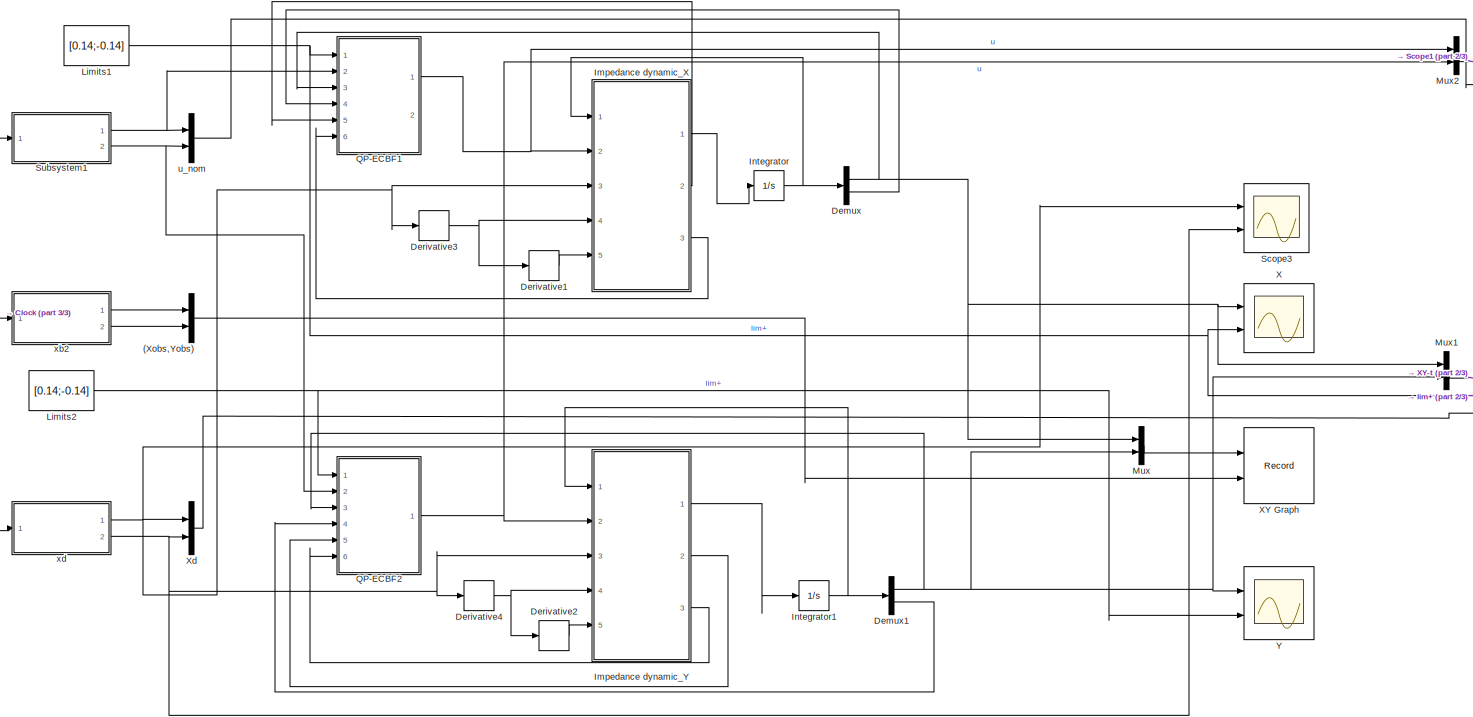
[diagram: root canvas - part 1/3, most of the canvas]
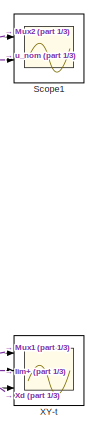
[diagram: root canvas - part 2/3, middle right region]
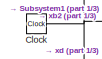
[diagram: root canvas - part 3/3, middle left region]
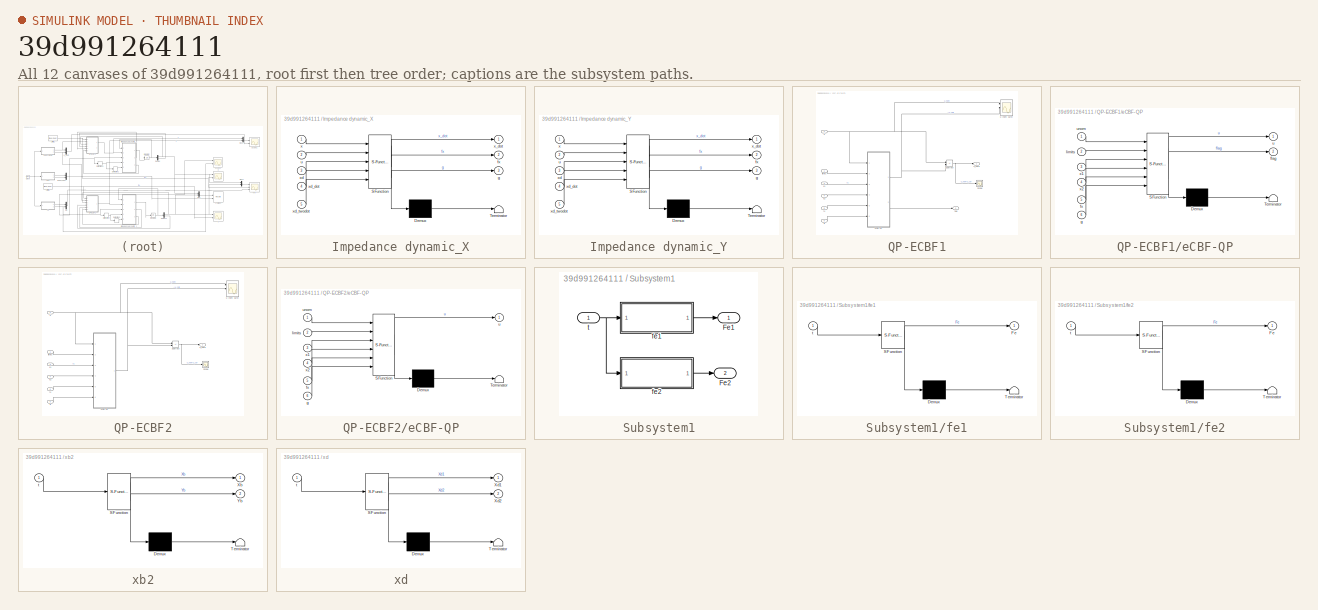
[diagram: thumbnail index - all 12 canvases of the model, root first then tree order]
MODEL slx_39d991264111
KIND model
CONFIG AbsTol = auto
CONFIG EnableMultiTasking = off
CONFIG FixedStep = 0.01
CONFIG MaxStep = auto
CONFIG MinStep = auto
CONFIG RelTol = 1e-3
CONFIG SampleTimeConstraint = Unconstrained
CONFIG SolverName = ode4
CONFIG StartTime = 0.0
CONFIG StopTime = 30
BLOCK [Mux] (Xobs,Yobs)
  DisplayOption = bar
  Inputs = 2
  NameLocation = left
  Ports = [2, 1]
BLOCK [Clock] Clock
BLOCK [Demux] Demux
  Outputs = 2
  Ports = [1, 2]
BLOCK [Demux] Demux1
  Outputs = 2
  Ports = [1, 2]
BLOCK [Derivative] Derivative1
BLOCK [Derivative] Derivative2
BLOCK [Derivative] Derivative3
BLOCK [Derivative] Derivative4
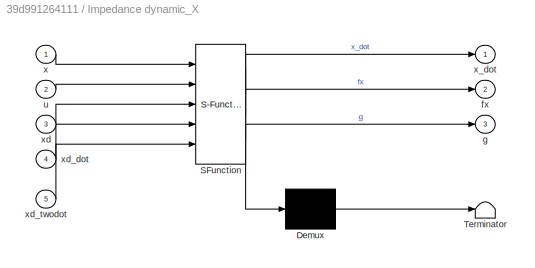
BLOCK [SubSystem] Impedance dynamic_X
  ErrorFcn = Stateflow.Translate.translate
  PermitHierarchicalResolution = ExplicitOnly
  Ports = [5, 3]
  RequestExecContextInheritance = off
  SFBlockType = MATLAB Function
  TreatAsAtomicUnit = on
BLOCK [Demux] Impedance dynamic_X/ Demux 
  Outputs = 1
  Ports = [1, 1]
BLOCK [S-Function] Impedance dynamic_X/ SFunction 
  EnableBusSupport = on
  FunctionName = sf_sfun
  PortCounts = [5 4]
  Ports = [5, 4]
  SFcnIsStateOwnerBlock = off
  SFunctionDeploymentMode = off
  Tag = Stateflow S-Function 7
BLOCK [Terminator] Impedance dynamic_X/ Terminator 
BLOCK [Outport] Impedance dynamic_X/fx
  Port = 2
BLOCK [Outport] Impedance dynamic_X/g
  Port = 3
BLOCK [Inport] Impedance dynamic_X/u
  Port = 2
BLOCK [Inport] Impedance dynamic_X/x
BLOCK [Outport] Impedance dynamic_X/x_dot
BLOCK [Inport] Impedance dynamic_X/xd
  Port = 3
BLOCK [Inport] Impedance dynamic_X/xd_dot
  Port = 4
BLOCK [Inport] Impedance dynamic_X/xd_twodot
  Port = 5
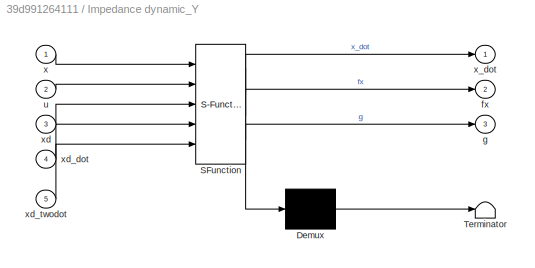
BLOCK [SubSystem] Impedance dynamic_Y
  ErrorFcn = Stateflow.Translate.translate
  PermitHierarchicalResolution = ExplicitOnly
  Ports = [5, 3]
  RequestExecContextInheritance = off
  SFBlockType = MATLAB Function
  TreatAsAtomicUnit = on
BLOCK [Demux] Impedance dynamic_Y/ Demux 
  Outputs = 1
  Ports = [1, 1]
BLOCK [S-Function] Impedance dynamic_Y/ SFunction 
  EnableBusSupport = on
  FunctionName = sf_sfun
  PortCounts = [5 4]
  Ports = [5, 4]
  SFcnIsStateOwnerBlock = off
  SFunctionDeploymentMode = off
  Tag = Stateflow S-Function 1
BLOCK [Terminator] Impedance dynamic_Y/ Terminator 
BLOCK [Outport] Impedance dynamic_Y/fx
  Port = 2
BLOCK [Outport] Impedance dynamic_Y/g
  Port = 3
BLOCK [Inport] Impedance dynamic_Y/u
  Port = 2
BLOCK [Inport] Impedance dynamic_Y/x
BLOCK [Outport] Impedance dynamic_Y/x_dot
BLOCK [Inport] Impedance dynamic_Y/xd
  Port = 3
BLOCK [Inport] Impedance dynamic_Y/xd_dot
  Port = 4
BLOCK [Inport] Impedance dynamic_Y/xd_twodot
  Port = 5
BLOCK [Integrator] Integrator
  InitialCondition = [0.109;0]
  Ports = [1, 1]
BLOCK [Integrator] Integrator1
  InitialCondition = [0;0]
  Ports = [1, 1]
BLOCK [Constant] Limits1
  NameLocation = top
  SampleTime = -1
  Value = [0.14;-0.14]
  VectorParams1D = off
BLOCK [Constant] Limits2
  NameLocation = top
  SampleTime = -1
  Value = [0.14;-0.14]
  VectorParams1D = off
BLOCK [Mux] Mux
  DisplayOption = bar
  Inputs = 2
  Ports = [2, 1]
BLOCK [Mux] Mux1
  DisplayOption = bar
  Inputs = 2
  Ports = [2, 1]
BLOCK [Mux] Mux2
  DisplayOption = bar
  Inputs = 2
  Ports = [2, 1]
BLOCK [SubSystem] QP-ECBF1
  Ports = [6, 2]
  RequestExecContextInheritance = off
BLOCK [Scope] QP-ECBF1/Scope
  Floating = off
  NumInputPorts = 1
  Ports = [1]
  ScopeSpecificationString = Simulink.scopes.TimeScopeBlockCfg('CurrentConfiguration', extmgr.ConfigurationSet(extmgr.Configuration('Core','General UI',true),extmgr.Configuration('Core','Source UI',true),extmgr.Configuration('Sources','WiredSimulink',true,'DataLoggingVariableName','ScopeData1'),extmgr.Configuration('Visuals','Time Domain',true,'SerializedDisplays',{struct('MinYLimReal','-74.07676','MaxYLimReal','62.38981','YL...<+1453ch>
BLOCK [Sum] QP-ECBF1/Subtract
  IconShape = rectangular
  Inputs = +-
  Ports = [2, 1]
BLOCK [SubSystem] QP-ECBF1/eCBF-QP
  ErrorFcn = Stateflow.Translate.translate
  PermitHierarchicalResolution = ExplicitOnly
  Ports = [6, 2]
  RequestExecContextInheritance = off
  SFBlockType = MATLAB Function
  TreatAsAtomicUnit = on
BLOCK [Demux] QP-ECBF1/eCBF-QP/ Demux 
  Outputs = 1
  Ports = [1, 1]
BLOCK [S-Function] QP-ECBF1/eCBF-QP/ SFunction 
  EnableBusSupport = on
  FunctionName = sf_sfun
  PortCounts = [6 3]
  Ports = [6, 3]
  SFcnIsStateOwnerBlock = off
  SFunctionDeploymentMode = off
  Tag = Stateflow S-Function 6
BLOCK [Terminator] QP-ECBF1/eCBF-QP/ Terminator 
BLOCK [Outport] QP-ECBF1/eCBF-QP/flag
  Port = 2
BLOCK [Inport] QP-ECBF1/eCBF-QP/fx
  Port = 5
BLOCK [Inport] QP-ECBF1/eCBF-QP/g
  Port = 6
BLOCK [Inport] QP-ECBF1/eCBF-QP/limits
  Port = 2
BLOCK [Outport] QP-ECBF1/eCBF-QP/u
BLOCK [Inport] QP-ECBF1/eCBF-QP/unom
BLOCK [Inport] QP-ECBF1/eCBF-QP/x1
  Port = 3
BLOCK [Inport] QP-ECBF1/eCBF-QP/x2
  Port = 4
BLOCK [Outport] QP-ECBF1/flag
  Port = 2
BLOCK [Inport] QP-ECBF1/fx
  Port = 5
BLOCK [Inport] QP-ECBF1/g
  Port = 6
BLOCK [Inport] QP-ECBF1/limits
  NameLocation = left
BLOCK [Inport] QP-ECBF1/u
  NameLocation = left
  Port = 2
BLOCK [Scope] QP-ECBF1/u (nom safe)
  Floating = off
  NumInputPorts = 3
  Ports = [3]
  ScopeSpecificationString = Simulink.scopes.TimeScopeBlockCfg('CurrentConfiguration', extmgr.ConfigurationSet(extmgr.Configuration('Core','General UI',true),extmgr.Configuration('Core','Source UI',true),extmgr.Configuration('Sources','WiredSimulink',true,'DataLoggingVariableName','ScopeData2'),extmgr.Configuration('Visuals','Time Domain',true,'SerializedDisplays',{struct('MinYLimReal','-49.89459','MaxYLimReal','129.1693','YL...<+1580ch>
BLOCK [Outport] QP-ECBF1/u_safe
  NameLocation = right
BLOCK [Inport] QP-ECBF1/x1
  Port = 3
BLOCK [Inport] QP-ECBF1/x2
  Port = 4
BLOCK [SubSystem] QP-ECBF2
  Ports = [6, 1]
  RequestExecContextInheritance = off
BLOCK [Scope] QP-ECBF2/Scope
  Floating = off
  NumInputPorts = 1
  Ports = [1]
  ScopeSpecificationString = Simulink.scopes.TimeScopeBlockCfg('CurrentConfiguration', extmgr.ConfigurationSet(extmgr.Configuration('Core','General UI',true),extmgr.Configuration('Core','Source UI',true),extmgr.Configuration('Sources','WiredSimulink',true,'DataLoggingVariableName','ScopeData1'),extmgr.Configuration('Visuals','Time Domain',true,'SerializedDisplays',{struct('MinYLimReal','-74.07676','MaxYLimReal','62.38981','YL...<+1453ch>
BLOCK [Sum] QP-ECBF2/Subtract
  IconShape = rectangular
  Inputs = +-
  Ports = [2, 1]
BLOCK [SubSystem] QP-ECBF2/eCBF-QP
  ErrorFcn = Stateflow.Translate.translate
  PermitHierarchicalResolution = ExplicitOnly
  Ports = [6, 1]
  RequestExecContextInheritance = off
  SFBlockType = MATLAB Function
  TreatAsAtomicUnit = on
BLOCK [Demux] QP-ECBF2/eCBF-QP/ Demux 
  Outputs = 1
  Ports = [1, 1]
BLOCK [S-Function] QP-ECBF2/eCBF-QP/ SFunction 
  EnableBusSupport = on
  FunctionName = sf_sfun
  PortCounts = [6 2]
  Ports = [6, 2]
  SFcnIsStateOwnerBlock = off
  SFunctionDeploymentMode = off
  Tag = Stateflow S-Function 3
BLOCK [Terminator] QP-ECBF2/eCBF-QP/ Terminator 
BLOCK [Inport] QP-ECBF2/eCBF-QP/fx
  Port = 5
BLOCK [Inport] QP-ECBF2/eCBF-QP/g
  Port = 6
BLOCK [Inport] QP-ECBF2/eCBF-QP/limits
  Port = 2
BLOCK [Outport] QP-ECBF2/eCBF-QP/u
BLOCK [Inport] QP-ECBF2/eCBF-QP/unom
BLOCK [Inport] QP-ECBF2/eCBF-QP/x1
  Port = 3
BLOCK [Inport] QP-ECBF2/eCBF-QP/x2
  Port = 4
BLOCK [Inport] QP-ECBF2/fx
  Port = 5
BLOCK [Inport] QP-ECBF2/g
  Port = 6
BLOCK [Inport] QP-ECBF2/limits
  NameLocation = left
BLOCK [Inport] QP-ECBF2/u
  NameLocation = left
  Port = 2
BLOCK [Scope] QP-ECBF2/u (nom safe)
  Floating = off
  NumInputPorts = 3
  Ports = [3]
  ScopeSpecificationString = Simulink.scopes.TimeScopeBlockCfg('CurrentConfiguration', extmgr.ConfigurationSet(extmgr.Configuration('Core','General UI',true),extmgr.Configuration('Core','Source UI',true),extmgr.Configuration('Sources','WiredSimulink',true,'DataLoggingVariableName','ScopeData2'),extmgr.Configuration('Visuals','Time Domain',true,'SerializedDisplays',{struct('MinYLimReal','-49.89459','MaxYLimReal','129.1693','YL...<+1580ch>
BLOCK [Outport] QP-ECBF2/u_safe
  NameLocation = right
BLOCK [Inport] QP-ECBF2/x1
  Port = 3
BLOCK [Inport] QP-ECBF2/x2
  Port = 4
BLOCK [Scope] Scope1
  Floating = off
  NumInputPorts = 2
  Ports = [2]
  ScopeSpecificationString = Simulink.scopes.TimeScopeBlockCfg('CurrentConfiguration', extmgr.ConfigurationSet(extmgr.Configuration('Core','General UI',true),extmgr.Configuration('Core','Source UI',true),extmgr.Configuration('Sources','WiredSimulink',true,'DataLoggingVariableName','fe','DataLogging',true,'DataLoggingSaveFormat','StructureWithTime'),extmgr.Configuration('Visuals','Time Domain',true,'SerializedDisplays',{struct...<+1485ch>
BLOCK [Scope] Scope3
  Floating = off
  NumInputPorts = 2
  Ports = [2]
  ScopeSpecificationString = Simulink.scopes.TimeScopeBlockCfg('CurrentConfiguration', extmgr.ConfigurationSet(extmgr.Configuration('Core','General UI',true),extmgr.Configuration('Core','Source UI',true),extmgr.Configuration('Sources','WiredSimulink',true,'DataLoggingVariableName','ScopeData2'),extmgr.Configuration('Visuals','Time Domain',true,'SerializedDisplays',{struct('MinYLimReal','-0.175','MaxYLimReal','0.175','YLabelRe...<+1396ch>
BLOCK [SubSystem] Subsystem1
  Ports = [1, 2]
  RequestExecContextInheritance = off
BLOCK [Outport] Subsystem1/Fe1
BLOCK [Outport] Subsystem1/Fe2
  Port = 2
BLOCK [SubSystem] Subsystem1/fe1
  ErrorFcn = Stateflow.Translate.translate
  PermitHierarchicalResolution = ExplicitOnly
  Ports = [1, 1]
  RequestExecContextInheritance = off
  SFBlockType = MATLAB Function
  TreatAsAtomicUnit = on
BLOCK [Demux] Subsystem1/fe1/ Demux 
  Outputs = 1
  Ports = [1, 1]
BLOCK [S-Function] Subsystem1/fe1/ SFunction 
  EnableBusSupport = on
  FunctionName = sf_sfun
  PortCounts = [1 2]
  Ports = [1, 2]
  SFcnIsStateOwnerBlock = off
  SFunctionDeploymentMode = off
  Tag = Stateflow S-Function 2
BLOCK [Terminator] Subsystem1/fe1/ Terminator 
BLOCK [Outport] Subsystem1/fe1/Fe
BLOCK [Inport] Subsystem1/fe1/t
BLOCK [SubSystem] Subsystem1/fe2
  ErrorFcn = Stateflow.Translate.translate
  PermitHierarchicalResolution = ExplicitOnly
  Ports = [1, 1]
  RequestExecContextInheritance = off
  SFBlockType = MATLAB Function
  TreatAsAtomicUnit = on
BLOCK [Demux] Subsystem1/fe2/ Demux 
  Outputs = 1
  Ports = [1, 1]
BLOCK [S-Function] Subsystem1/fe2/ SFunction 
  EnableBusSupport = on
  FunctionName = sf_sfun
  PortCounts = [1 2]
  Ports = [1, 2]
  SFcnIsStateOwnerBlock = off
  SFunctionDeploymentMode = off
  Tag = Stateflow S-Function 4
BLOCK [Terminator] Subsystem1/fe2/ Terminator 
BLOCK [Outport] Subsystem1/fe2/Fe
BLOCK [Inport] Subsystem1/fe2/t
BLOCK [Inport] Subsystem1/t
BLOCK [Scope] X
  Floating = off
  NumInputPorts = 2
  Ports = [2]
  ScopeSpecificationString = Simulink.scopes.TimeScopeBlockCfg('CurrentConfiguration', extmgr.ConfigurationSet(extmgr.Configuration('Core','General UI',true),extmgr.Configuration('Core','Source UI',true),extmgr.Configuration('Sources','WiredSimulink',true,'DataLoggingVariableName','ScopeData1'),extmgr.Configuration('Visuals','Time Domain',true,'SerializedDisplays',{struct('MinYLimReal','-0.175','MaxYLimReal','0.175','YLabelRe...<+1407ch>
BLOCK [Record] XY Graph
  CompatibilityTag = XY
  FileSettingsInternal = {"entries":[{"content":{"excelSettings":{"content":{},"type":"Streamout.ExcelSettings"}},"type":"Streamout.FileSettingStorage","uuid":"dbb08b8c-82d0-465d-aff3-0ed4ecab6f36"}],"packageUris":["http://schema.mathworks.com/mf0/streamout_blocks/R2020a"],"version":"1.0"}
  Layout = [1 1]
  Ports = [2]
  RecordToWorkspace = on
  SignalsInternal = {"entries":[{"content":{"signals":[{"content":{"blockPath":["Safety_filter_taskspace_run/XY Graph"],"channel":[],"dimensions":[2],"domain":"Safety_filter_taskspace_run/XY Graph","hasChildren":true,"lineColor":"#fe330a","plots":[],"port":1,"sid":[""],"signalID":2446,"signalName":"Mux"},"type":"RecordBlkView.Signal","uuid":"64155ae2-b4ad-4081-9d64-1b782b1dac96"},{"content":{"blockPath":["Safety_filt...<+1797ch>
  VariableName = Traj
  VisualizationBindings = {"xyplotplugin":{"info":[{"series":[{"bindingParametersList":[{"parameter":"X-Axis","signalID":2447,"signalName":"Mux(1)"},{"parameter":"Y-Axis","signalID":2456,"signalName":"Mux(2)"}],"seriesID":13373}],"subplotID":1}]}}
  st = -1
BLOCK [Scope] XY-t
  Floating = off
  NumInputPorts = 3
  Ports = [3]
  ScopeSpecificationString = Simulink.scopes.TimeScopeBlockCfg('CurrentConfiguration', extmgr.ConfigurationSet(extmgr.Configuration('Core','General UI',true),extmgr.Configuration('Core','Source UI',true),extmgr.Configuration('Sources','WiredSimulink',true,'DataLoggingVariableName','XYdata','DataLogging',true,'DataLoggingSaveFormat','StructureWithTime'),extmgr.Configuration('Visuals','Time Domain',true,'SerializedDisplays',{st...<+1499ch>
BLOCK [Mux] Xd
  DisplayOption = bar
  Inputs = 2
  NameLocation = left
  Ports = [2, 1]
BLOCK [Scope] Y
  Floating = off
  NumInputPorts = 2
  Ports = [2]
  ScopeSpecificationString = Simulink.scopes.TimeScopeBlockCfg('CurrentConfiguration', extmgr.ConfigurationSet(extmgr.Configuration('Core','General UI',true),extmgr.Configuration('Core','Source UI',true),extmgr.Configuration('Sources','WiredSimulink',true,'DataLoggingVariableName','ScopeData3'),extmgr.Configuration('Visuals','Time Domain',true,'SerializedDisplays',{struct('MinYLimReal','-0.175','MaxYLimReal','0.175','YLabelRe...<+1410ch>
BLOCK [Mux] u_nom
  DisplayOption = bar
  Inputs = 2
  NameLocation = left
  Ports = [2, 1]
BLOCK [SubSystem] xb2
  ErrorFcn = Stateflow.Translate.translate
  PermitHierarchicalResolution = ExplicitOnly
  Ports = [1, 2]
  RequestExecContextInheritance = off
  SFBlockType = MATLAB Function
  TreatAsAtomicUnit = on
BLOCK [Demux] xb2/ Demux 
  Outputs = 1
  Ports = [1, 1]
BLOCK [S-Function] xb2/ SFunction 
  EnableBusSupport = on
  FunctionName = sf_sfun
  PortCounts = [1 3]
  Ports = [1, 3]
  SFcnIsStateOwnerBlock = off
  SFunctionDeploymentMode = off
  Tag = Stateflow S-Function 13
BLOCK [Terminator] xb2/ Terminator 
BLOCK [Outport] xb2/Xb
BLOCK [Outport] xb2/Yb
  Port = 2
BLOCK [Inport] xb2/t
BLOCK [SubSystem] xd
  ErrorFcn = Stateflow.Translate.translate
  PermitHierarchicalResolution = ExplicitOnly
  Ports = [1, 2]
  RequestExecContextInheritance = off
  SFBlockType = MATLAB Function
  TreatAsAtomicUnit = on
BLOCK [Demux] xd/ Demux 
  Outputs = 1
  Ports = [1, 1]
BLOCK [S-Function] xd/ SFunction 
  EnableBusSupport = on
  FunctionName = sf_sfun
  PortCounts = [1 3]
  Ports = [1, 3]
  SFcnIsStateOwnerBlock = off
  SFunctionDeploymentMode = off
  Tag = Stateflow S-Function 5
BLOCK [Terminator] xd/ Terminator 
BLOCK [Outport] xd/Xd1
BLOCK [Outport] xd/Xd2
  Port = 2
BLOCK [Inport] xd/t
LINE (Xobs,Yobs):1 -> XY Graph:2
NET Clock:1 -> Subsystem1:1, xb2:1, xd:1
NET Demux1:1 -> Mux1:2, Mux:2, QP-ECBF2:3, Y:1
LINE Demux1:2 -> QP-ECBF2:4
NET Demux:1 -> Mux1:1, Mux:1, QP-ECBF1:3, X:1
LINE Demux:2 -> QP-ECBF1:4
LINE Derivative1:1 -> Impedance dynamic_X:5
LINE Derivative2:1 -> Impedance dynamic_Y:5
NET Derivative3:1 -> Derivative1:1, Impedance dynamic_X:4
NET Derivative4:1 -> Derivative2:1, Impedance dynamic_Y:4
LINE Impedance dynamic_X:1 -> Integrator:1
LINE Impedance dynamic_X:2 -> QP-ECBF1:5
LINE Impedance dynamic_X:3 -> QP-ECBF1:6
LINE Impedance dynamic_Y:1 -> Integrator1:1
LINE Impedance dynamic_Y:2 -> QP-ECBF2:5
LINE Impedance dynamic_Y:3 -> QP-ECBF2:6
NET Integrator1:1 -> Demux1:1, Impedance dynamic_Y:1
NET Integrator:1 -> Demux:1, Impedance dynamic_X:1
NET Limits1:1 -> QP-ECBF1:1, X:2, XY-t:2
NET Limits2:1 -> QP-ECBF2:1, Y:2
LINE Mux1:1 -> XY-t:1
LINE Mux2:1 -> Scope1:1
LINE Mux:1 -> XY Graph:1
NET QP-ECBF1/Subtract:1 -> QP-ECBF1/Scope:1, QP-ECBF1/u_safe:1
NET QP-ECBF1/eCBF-QP:1 -> QP-ECBF1/Subtract:2, QP-ECBF1/u (nom safe):2
LINE QP-ECBF1/eCBF-QP:2 -> QP-ECBF1/flag:1
LINE QP-ECBF1/fx:1 -> QP-ECBF1/eCBF-QP:5
LINE QP-ECBF1/g:1 -> QP-ECBF1/eCBF-QP:6
LINE QP-ECBF1/limits:1 -> QP-ECBF1/eCBF-QP:2
NET QP-ECBF1/u:1 -> QP-ECBF1/Subtract:1, QP-ECBF1/eCBF-QP:1, QP-ECBF1/u (nom safe):1
LINE QP-ECBF1/x1:1 -> QP-ECBF1/eCBF-QP:3
LINE QP-ECBF1/x2:1 -> QP-ECBF1/eCBF-QP:4
NET QP-ECBF1:1 -> Impedance dynamic_X:2, Mux2:1
NET QP-ECBF2/Subtract:1 -> QP-ECBF2/Scope:1, QP-ECBF2/u_safe:1
NET QP-ECBF2/eCBF-QP:1 -> QP-ECBF2/Subtract:2, QP-ECBF2/u (nom safe):2
LINE QP-ECBF2/fx:1 -> QP-ECBF2/eCBF-QP:5
LINE QP-ECBF2/g:1 -> QP-ECBF2/eCBF-QP:6
LINE QP-ECBF2/limits:1 -> QP-ECBF2/eCBF-QP:2
NET QP-ECBF2/u:1 -> QP-ECBF2/Subtract:1, QP-ECBF2/eCBF-QP:1, QP-ECBF2/u (nom safe):1
LINE QP-ECBF2/x1:1 -> QP-ECBF2/eCBF-QP:3
LINE QP-ECBF2/x2:1 -> QP-ECBF2/eCBF-QP:4
NET QP-ECBF2:1 -> Impedance dynamic_Y:2, Mux2:2
LINE Subsystem1/fe1:1 -> Subsystem1/Fe1:1
LINE Subsystem1/fe2:1 -> Subsystem1/Fe2:1
NET Subsystem1/t:1 -> Subsystem1/fe1:1, Subsystem1/fe2:1
NET Subsystem1:1 -> QP-ECBF1:2, u_nom:1
NET Subsystem1:2 -> QP-ECBF2:2, u_nom:2
LINE Xd:1 -> XY-t:3
LINE u_nom:1 -> Scope1:2
LINE xb2:1 -> (Xobs,Yobs):1
LINE xb2:2 -> (Xobs,Yobs):2
NET xd:1 -> Derivative3:1, Impedance dynamic_X:3, Scope3:1, Xd:1
NET xd:2 -> Derivative4:1, Impedance dynamic_Y:3, Scope3:2, Xd:2
note: NET lines group one-source signal fan-out (src -> all destinations, sorted); 1:1 wires keep LINE
CHART Impedance dynamic_Y states=1 transitions=1
  STATE_LABEL 'eML_blk_kernel()'
  STATE_LABEL 'SCRIPT:\nfunction [x_dot,fx,g] = System(x,u,xd,xd_dot,xd_twodot)\n\n    km = 20;\n    kb = 20;                                                       \n    kk = 100;\n    fx = [x(2);\n        -(1/km)*(kb*(x(2)-xd_dot)+kk*(x(1)-xd)-km*xd_twodot)];\n    g = [0;km^(-1)];\n    x_dot = fx + g*u;\nend\n'
CHART Subsystem1/fe1 states=1 transitions=1
  STATE_LABEL 'eML_blk_kernel()'
  STATE_LABEL 'SCRIPT:\nfunction Fe  = External_force(t)\n\n    Fe = 0*(t<4|t>=11) + (1-cos(pi*t))*(t>=4&t<5) + 2*(t>=5&t<10) + (1+cos(pi*t))*(t>=10&t<11);\n\nend'
CHART QP-ECBF2/eCBF-QP states=1 transitions=1
  STATE_LABEL 'eML_blk_kernel()'
  STATE_LABEL 'SCRIPT:\nfunction u = fcn(unom, limits, x1, x2,fx,g)\n %Barrier Limits\n    lim     = limits(1);\n    lim2    = limits(2);\n \n    %ECBF Gains\n    k1      = 50;\n    k2      = 300;\n    \n    k3      = k1;\n    k4      = k2;\n    % Maximum Value CBF variables\n    hx      = (x1 - lim)^2 - 0.001 ;  %(lim^2 - x1^2) \n    Lfhx    = 2*(x1 - lim)*x2;\n    \n%     L2fhx   = 2*(x1 - lim)*((2*x1*(x1^2 + x2)) + x1*x2 + x...<+719ch>'
CHART Subsystem1/fe2 states=1 transitions=1
  STATE_LABEL 'eML_blk_kernel()'
  STATE_LABEL 'SCRIPT:\nfunction Fe  = External_force(t)\n\n   Fe = 0*(t<4|t>=11) + 2*(1-cos(pi*t))*(t>=4&t<5) + 4*(t>=5&t<10) + 2*(1+cos(pi*t))*(t>=10&t<11);\n\nend'
CHART xd states=1 transitions=1
  STATE_LABEL 'eML_blk_kernel()'
  STATE_LABEL 'SCRIPT:\nfunction [Xd1, Xd2] = Desired_traj(t)\n\n    Xd1=0.14*cos(0.5*t);\n    Xd2=0.14*sin(0.5*t);\n    \nend'
CHART QP-ECBF1/eCBF-QP states=1 transitions=1
  STATE_LABEL 'eML_blk_kernel()'
  STATE_LABEL 'SCRIPT:\nfunction [u,flag] = fcn(unom, limits, x1, x2,fx,g)\n     %Barrier Limits\n    lim     = limits(1);\n    lim2    = limits(2);\n \n    %ECBF Gains\n    k1      = 50;\n    k2      = 300;\n    \n    k3      = k1;\n    k4      = k2;\n    % Maximum Value CBF variables\n    hx      = (x1 - lim)^2 - 0.001 ;  %(lim^2 - x1^2) \n    Lfhx    = 2*(x1 - lim)*x2;\n    \n%     L2fhx   = 2*(x1 - lim)*((2*x1*(x1^2 + x2)) ...<+731ch>'
CHART Impedance dynamic_X states=1 transitions=1
  STATE_LABEL 'eML_blk_kernel()'
  STATE_LABEL 'SCRIPT:\nfunction [x_dot,fx,g] = System(x,u,xd,xd_dot,xd_twodot)\n\n    km = 20;\n    kb = 20;                                                       \n    kk = 100;\n    fx = [x(2);\n        -(1/km)*(kb*(x(2)-xd_dot)+kk*(x(1)-xd)-km*xd_twodot)];\n    g = [0;km^(-1)];\n    x_dot = fx + g*u;\nend\n'
CHART xb2 states=1 transitions=1
  STATE_LABEL 'eML_blk_kernel()'
  STATE_LABEL 'SCRIPT:\nfunction [Xb,Yb]  = Obstacles_traj(t)\n\nXb =  -0.07+0.05*cos(t);\nYb =  -0.05+0.05*sin(t);\n    \nend'
CHART  states=0 transitions=0
CHART  states=0 transitions=0
CHART  states=0 transitions=0
CHART  states=0 transitions=0
CHART  states=0 transitions=0
CHART  states=0 transitions=0
CHART  states=0 transitions=0
CHART  states=0 transitions=0
